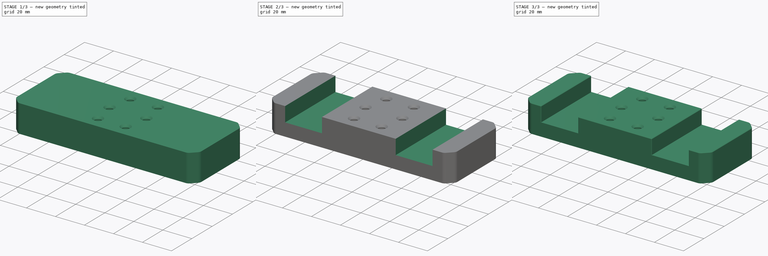
[diagram: build sequence overview — one tinted view per stage of 3, left to right]
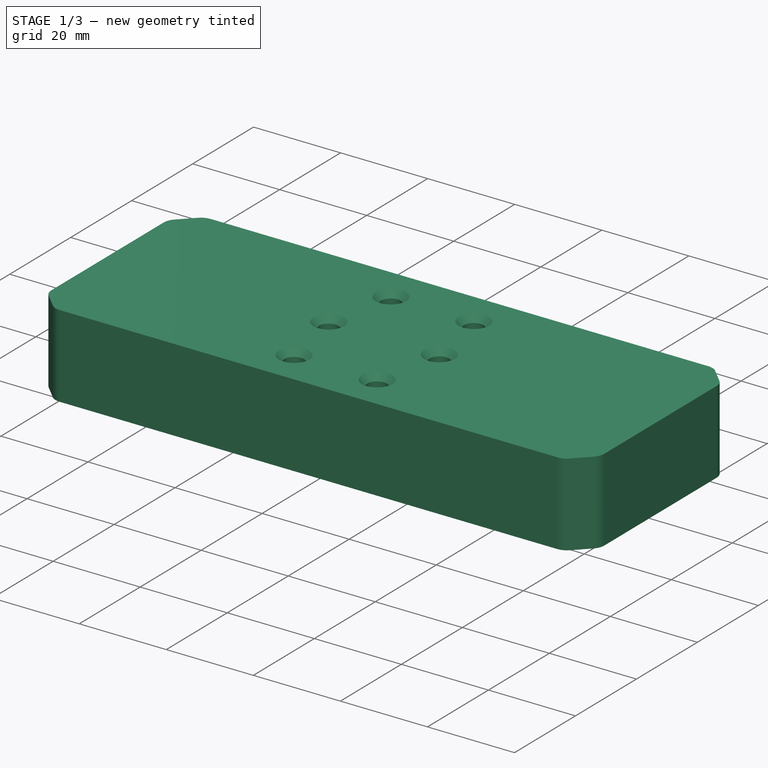
[diagram: stage 1 of 3 — iso view after this stage's code; geometry added in this stage tinted green]
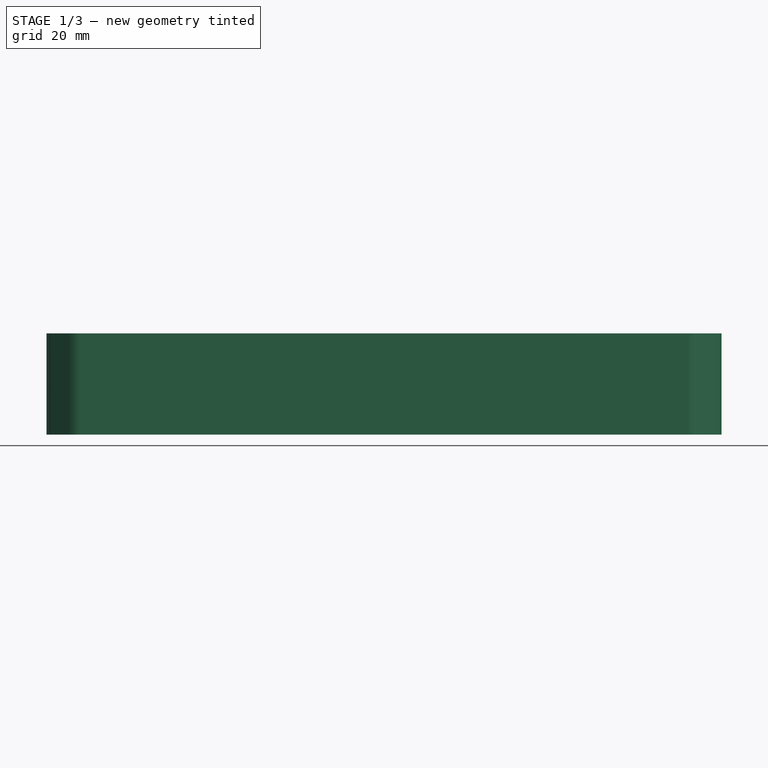
[diagram: stage 1 of 3 — front view after this stage's code; geometry added in this stage tinted green]
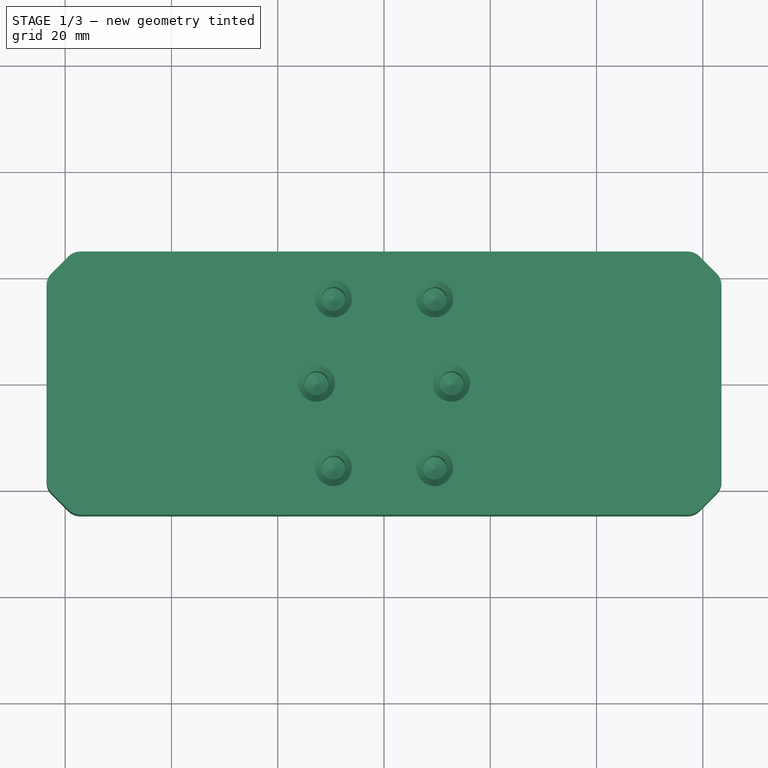
[diagram: stage 1 of 3 — top view after this stage's code; geometry added in this stage tinted green]
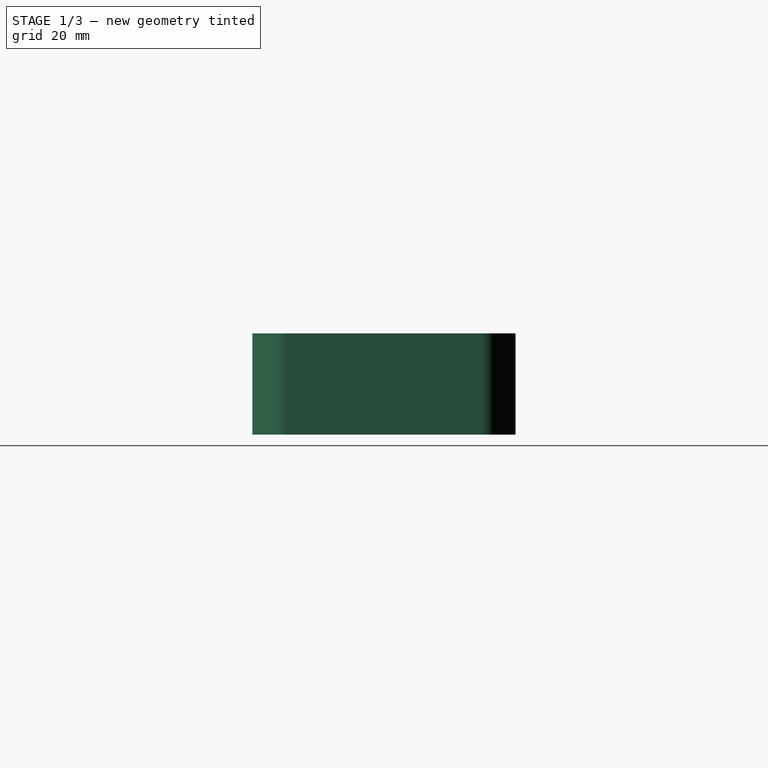
[diagram: stage 1 of 3 — right view after this stage's code; geometry added in this stage tinted green]
FCSTD DOCUMENT  (FreeCAD 0.19R24291 (Git))
Label: TITAN-2M
License: All rights reserved
LicenseURL: http://en.wikipedia.org/wiki/All_rights_reserved
objects: Sketcher::SketchObject×3, PartDesign::Pad×1, PartDesign::Hole×1, PartDesign::Pocket×1, PartDesign::Fillet×1, PartDesign::Chamfer×1, PartDesign::Body×1
note: 14 computed .brp shape members not serialized (recipe doc carries the construction recipe); baked Part::Feature solids carry a one-line shape summary decoded from their .brp

FEATURE [Sketcher::SketchObject] Sketch
  FullyConstrained = true
  MapMode = 5
  Support = -> [XY_Plane]
  sketch-geometry (24):
    g0: LineSegment StartX=-62.5701 StartY=-20.6601 StartZ=0 EndX=-59.3951 EndY=-23.8351 EndZ=0
    g1: LineSegment StartX=-57.15 StartY=-24.765 StartZ=0 EndX=57.15 EndY=-24.765 EndZ=0
    g2: LineSegment StartX=59.3951 StartY=-23.8351 StartZ=0 EndX=62.5701 EndY=-20.6601 EndZ=0
    g3: LineSegment StartX=63.5 StartY=-18.415 StartZ=0 EndX=63.5 EndY=18.415 EndZ=0
    g4: LineSegment StartX=62.5701 StartY=20.6601 StartZ=0 EndX=59.3951 EndY=23.8351 EndZ=0
    g5: LineSegment StartX=57.15 StartY=24.765 StartZ=0 EndX=-57.15 EndY=24.765 EndZ=0
    g6: LineSegment StartX=-59.3951 StartY=23.8351 StartZ=0 EndX=-62.5701 EndY=20.6601 EndZ=0
    g7: LineSegment StartX=-63.5 StartY=18.415 StartZ=0 EndX=-63.5 EndY=-18.415 EndZ=0
    g8: LineSegment StartX=63.5 StartY=-18.415 StartZ=0 EndX=63.5 EndY=-24.765 EndZ=0
    g9: LineSegment StartX=57.15 StartY=-24.765 StartZ=0 EndX=63.5 EndY=-24.765 EndZ=0
    g10: LineSegment StartX=57.15 StartY=24.765 StartZ=0 EndX=63.5 EndY=24.765 EndZ=0
    g11: LineSegment StartX=63.5 StartY=24.765 StartZ=0 EndX=63.5 EndY=18.415 EndZ=0
    g12: LineSegment StartX=-57.15 StartY=24.765 StartZ=0 EndX=-63.5 EndY=24.765 EndZ=0
    g13: LineSegment StartX=-63.5 StartY=24.765 StartZ=0 EndX=-63.5 EndY=18.415 EndZ=0
    g14: LineSegment StartX=-63.5 StartY=-18.415 StartZ=0 EndX=-63.5 EndY=-24.765 EndZ=0
    g15: LineSegment StartX=-63.5 StartY=-24.765 StartZ=0 EndX=-57.15 EndY=-24.765 EndZ=0
    g16: ArcOfCircle CenterX=-60.325 CenterY=18.415 CenterZ=0 NormalX=0 NormalY=0 NormalZ=1 AngleXU=0 Radius=3.175 StartAngle=2.35619 EndAngle=3.14159
    g17: ArcOfCircle CenterX=-57.15 CenterY=21.59 CenterZ=0 NormalX=0 NormalY=0 NormalZ=1 AngleXU=0 Radius=3.175 StartAngle=1.5708 EndAngle=2.35619
    g18: ArcOfCircle CenterX=57.15 CenterY=21.59 CenterZ=0 NormalX=0 NormalY=0 NormalZ=1 AngleXU=0 Radius=3.175 StartAngle=0.785398 EndAngle=1.5708
    g19: ArcOfCircle CenterX=60.325 CenterY=18.415 CenterZ=0 NormalX=0 NormalY=0 NormalZ=1 AngleXU=0 Radius=3.175 StartAngle=4e-16 EndAngle=0.785398
    g20: ArcOfCircle CenterX=60.325 CenterY=-18.415 CenterZ=0 NormalX=0 NormalY=0 NormalZ=1 AngleXU=0 Radius=3.175 StartAngle=5.49779 EndAngle=6.28319
    g21: ArcOfCircle CenterX=57.15 CenterY=-21.59 CenterZ=0 NormalX=0 NormalY=0 NormalZ=1 AngleXU=0 Radius=3.175 StartAngle=4.71239 EndAngle=5.49779
    g22: ArcOfCircle CenterX=-57.15 CenterY=-21.59 CenterZ=0 NormalX=0 NormalY=0 NormalZ=1 AngleXU=0 Radius=3.175 StartAngle=3.92699 EndAngle=4.71239
    g23: ArcOfCircle CenterX=-60.325 CenterY=-18.415 CenterZ=0 NormalX=0 NormalY=0 NormalZ=1 AngleXU=0 Radius=3.175 StartAngle=3.14159 EndAngle=3.92699
  constraints (58):
    c: Equal(g5,g1)
    c: Equal(g7,g3)
    c: Coincident(g9,g8)
    c: Coincident(g10,g11)
    c: Coincident(g12,g13)
    c: Coincident(g14,g15)
    c: Horizontal(g15)
    c: Horizontal(g12)
    c: Horizontal(g10)
    c: Horizontal(g9)
    c: Vertical(g8)
    c: Vertical(g11)
    c: Vertical(g13)
    c: Vertical(g14)
    c: Equal(g15,g14)
    c: Equal(g9,g8)
    c: Equal(g13,g12)
    c: Distance(g12) = 6.35
    c: Distance(g12,g10) = 127
    c: Distance(g12,g14) = 49.53
    c: Tangent(g7,g16) = -1.5708
    c: Tangent(g6,g16) = -1.5708
    c: Tangent(g5,g17) = -1.5708
    c: Tangent(g6,g17) = -1.5708
    c: Tangent(g5,g18) = -1.5708
    c: Tangent(g4,g18) = -1.5708
    c: Tangent(g4,g19) = -1.5708
    c: Tangent(g3,g19) = -1.5708
    c: Tangent(g2,g20) = -1.5708
    c: Tangent(g3,g20) = -1.5708
    c: Tangent(g2,g21) = -1.5708
    c: Tangent(g1,g21) = -1.5708
    c: Tangent(g1,g22) = -1.5708
    c: Tangent(g0,g22) = -1.5708
    c: Tangent(g0,g23) = -1.5708
    c: Tangent(g7,g23) = -1.5708
    c: Vertical(g3)
    c: Horizontal(g1)
    c: Coincident(g14,g7)
    c: Coincident(g15,g1)
    c: Equal(g22,g23)
    c: Equal(g23,g16)
    c: Equal(g16,g17)
    c: Equal(g17,g18)
    c: Equal(g18,g19)
    c: Equal(g19,g20)
    c: Equal(g20,g21)
    c: Radius(g16) = 3.175
    c: Coincident(g13,g7)
    c: Coincident(g12,g5)
    c: Coincident(g10,g5)
    c: Coincident(g11,g3)
    c: Coincident(g8,g3)
    c: Coincident(g9,g1)
    c: Symmetric(g12,g10,g-2)
    c: Symmetric(g14,g12,g-1)
    c: Equal(g14,g13)
    c: Equal(g11,g10)
FEATURE [PartDesign::Pad] Pad
  Direction = (1,1,1)
  Length = 19.05
  Length2 = 99.9998
  Profile = -> Sketch
  Refine = true
  Type = 0
FEATURE [Sketcher::SketchObject] Sketch001
  ExternalGeometry = -> [Pad]
  FullyConstrained = true
  MapMode = 5
  Placement = pos=(0,0,19.05) rot=(0,0,1;0rad)
  Support = -> [Pad]
  sketch-geometry (6):
    g0: Circle CenterX=-9.525 CenterY=15.875 CenterZ=0 NormalX=0 NormalY=0 NormalZ=1 AngleXU=0 Radius=2.5527
    g1: Circle CenterX=9.525 CenterY=15.875 CenterZ=0 NormalX=0 NormalY=0 NormalZ=1 AngleXU=0 Radius=2.5527
    g2: Circle CenterX=12.7 CenterY=0 CenterZ=0 NormalX=0 NormalY=0 NormalZ=1 AngleXU=0 Radius=2.5527
    g3: Circle CenterX=-12.7 CenterY=0 CenterZ=0 NormalX=0 NormalY=0 NormalZ=1 AngleXU=0 Radius=2.5527
    g4: Circle CenterX=-9.525 CenterY=-15.875 CenterZ=0 NormalX=0 NormalY=0 NormalZ=1 AngleXU=0 Radius=2.5527
    g5: Circle CenterX=9.525 CenterY=-15.875 CenterZ=0 NormalX=0 NormalY=0 NormalZ=1 AngleXU=0 Radius=2.5527
  constraints (14):
    c: PointOnObject(g2,g-1)
    c: Symmetric(g0,g1,g-2)
    c: DistanceX(g-3,g0) = 53.975
    c: DistanceY(g0,g-4) = 8.89
    c: Symmetric(g0,g4,g-1)
    c: Symmetric(g1,g5,g-1)
    c: Equal(g0,g1)
    c: Equal(g1,g2)
    c: Equal(g2,g5)
    c: Equal(g5,g4)
    c: Equal(g4,g3)
    c: Symmetric(g3,g2,g-2)
    c: DistanceX(g-3,g3) = 50.8
    c: Diameter(g4) = 5.1054
FEATURE [PartDesign::Hole] Hole
  BaseFeature = -> Pad
  Depth = 14.986
  DepthType = 0
  Diameter = 4.5
  DrillForDepth = false
  DrillPoint = 1
  DrillPointAngle = 118
  HoleCutCountersinkAngle = 82
  HoleCutCustomValues = false
  HoleCutDepth = 0
  HoleCutDiameter = 6.985
  HoleCutType = 2
  ModelActualThread = false
  Profile = -> Sketch001
  Refine = true
  Tapered = false
  TaperedAngle = 90
  ThreadAngle = 60
  ThreadClass = 1
  ThreadCutOffInner = 0.114532
  ThreadCutOffOuter = 0.229064
  ThreadDirection = 0
  ThreadFit = 1
  ThreadPitch = 1.058
  ThreadSize = 8
  ThreadType = 3
  Threaded = true
  expr: Depth = 0.375" + 0.215"
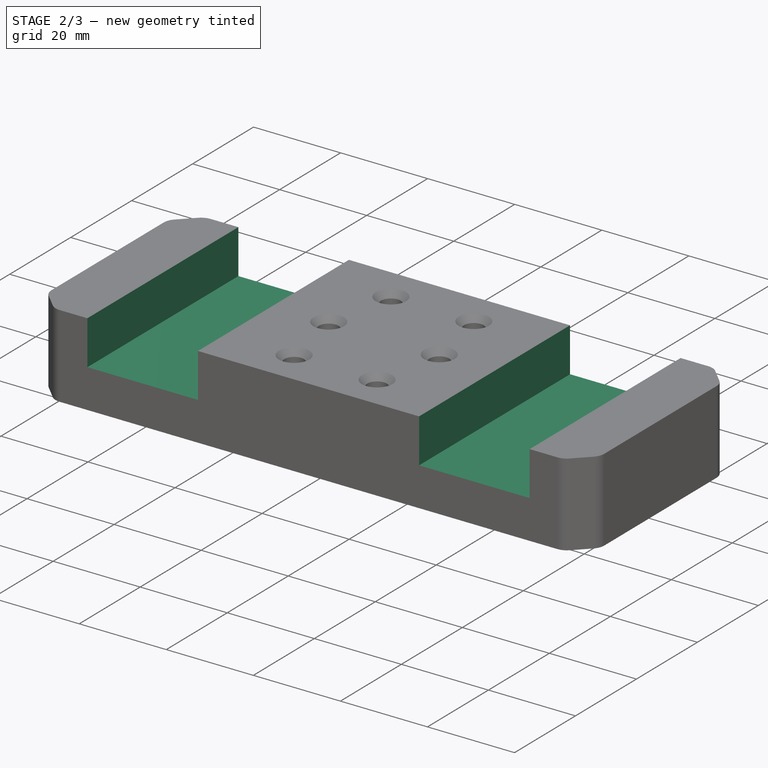
[diagram: stage 2 of 3 — iso view after this stage's code; geometry added in this stage tinted green]
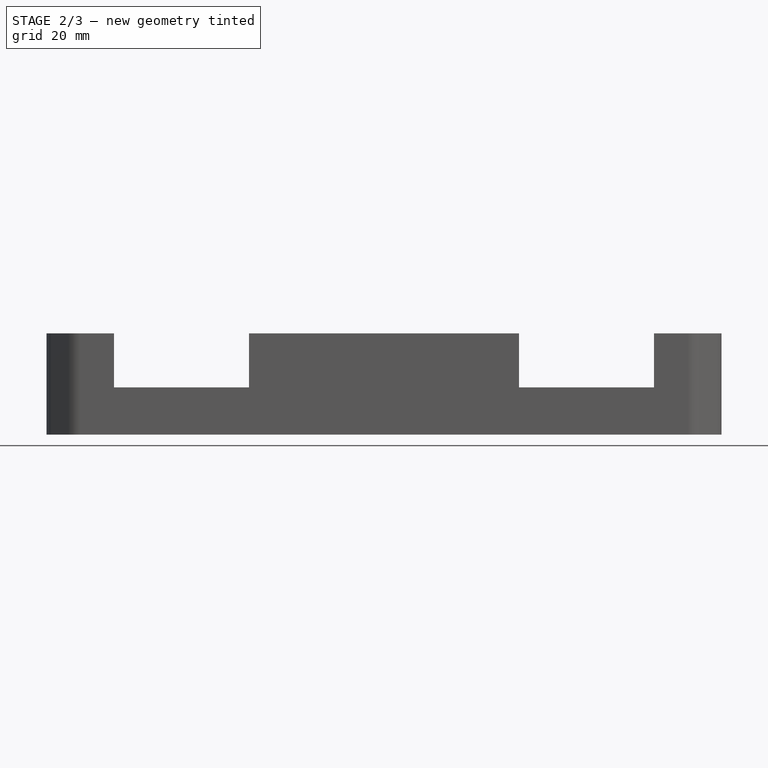
[diagram: stage 2 of 3 — front view after this stage's code; geometry added in this stage tinted green]
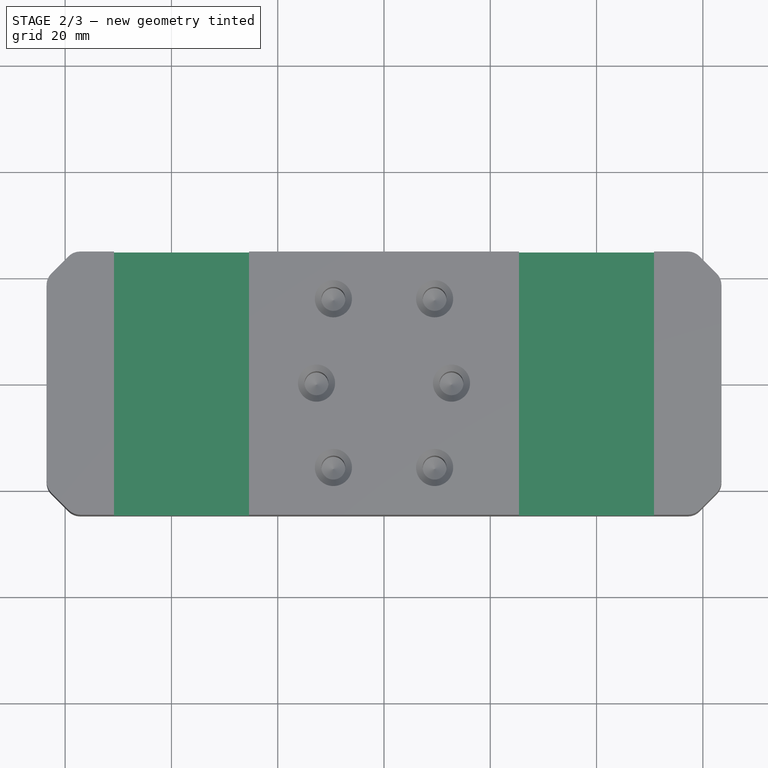
[diagram: stage 2 of 3 — top view after this stage's code; geometry added in this stage tinted green]
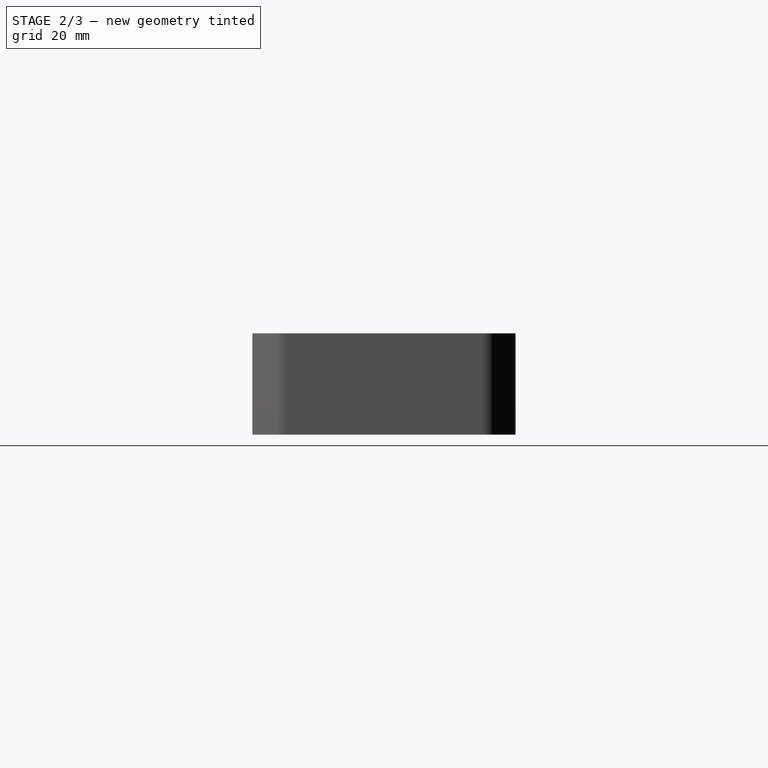
[diagram: stage 2 of 3 — right view after this stage's code; geometry added in this stage tinted green]
FEATURE [Sketcher::SketchObject] Sketch002
  ExternalGeometry = -> [Hole]
  FullyConstrained = true
  MapMode = 5
  Placement = pos=(0,0,19.05) rot=(0,0,1;0rad)
  Support = -> [Hole]
  sketch-geometry (8):
    g0: LineSegment StartX=-50.8 StartY=24.765 StartZ=0 EndX=-25.4 EndY=24.765 EndZ=0
    g1: LineSegment StartX=-25.4 StartY=24.765 StartZ=0 EndX=-25.4 EndY=-24.765 EndZ=0
    g2: LineSegment StartX=-25.4 StartY=-24.765 StartZ=0 EndX=-50.8 EndY=-24.765 EndZ=0
    g3: LineSegment StartX=-50.8 StartY=-24.765 StartZ=0 EndX=-50.8 EndY=24.765 EndZ=0
    g4: LineSegment StartX=25.4 StartY=24.765 StartZ=0 EndX=50.8 EndY=24.765 EndZ=0
    g5: LineSegment StartX=50.8 StartY=24.765 StartZ=0 EndX=50.8 EndY=-24.765 EndZ=0
    g6: LineSegment StartX=50.8 StartY=-24.765 StartZ=0 EndX=25.4 EndY=-24.765 EndZ=0
    g7: LineSegment StartX=25.4 StartY=-24.765 StartZ=0 EndX=25.4 EndY=24.765 EndZ=0
  constraints (22):
    c: Coincident(g0,g1)
    c: Coincident(g1,g2)
    c: Coincident(g2,g3)
    c: Coincident(g3,g0)
    c: Horizontal(g0)
    c: Horizontal(g2)
    c: Vertical(g1)
    c: Vertical(g3)
    c: PointOnObject(g0,g-3)
    c: PointOnObject(g1,g-5)
    c: Coincident(g4,g5)
    c: Coincident(g5,g6)
    c: Coincident(g6,g7)
    c: Coincident(g7,g4)
    c: Horizontal(g4)
    c: Horizontal(g6)
    c: Vertical(g5)
    c: Vertical(g7)
    c: Symmetric(g6,g1,g-2)
    c: Symmetric(g4,g0,g-2)
    c: DistanceX(g-4,g0) = 12.7
    c: DistanceX(g-4,g0) = 38.1
FEATURE [PartDesign::Pocket] Pocket
  BaseFeature = -> Hole
  Length = 10.16
  Length2 = 99.9998
  Profile = -> Sketch002
  Refine = true
  Type = 0
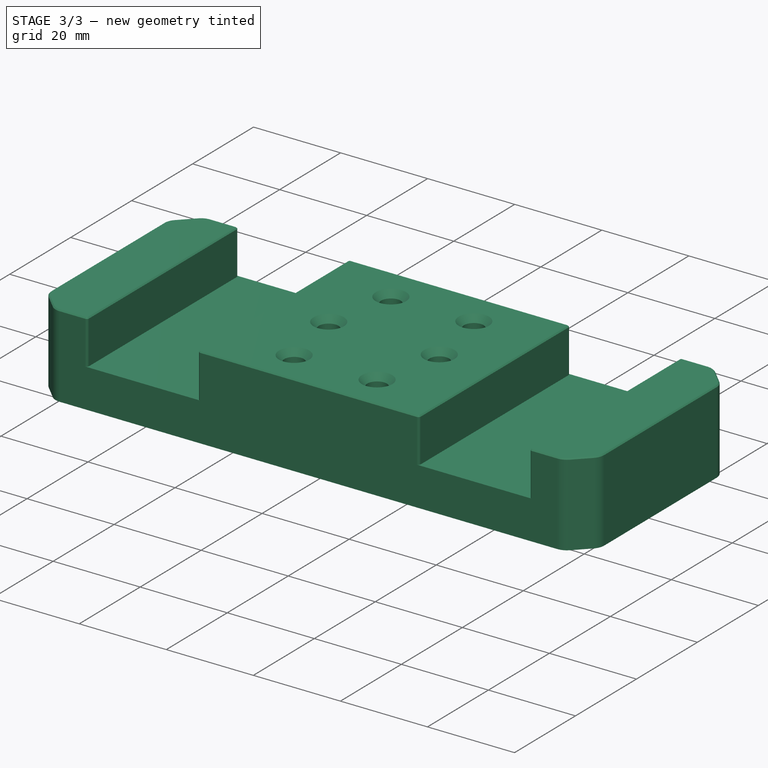
[diagram: stage 3 of 3 — iso view after this stage's code; geometry added in this stage tinted green]
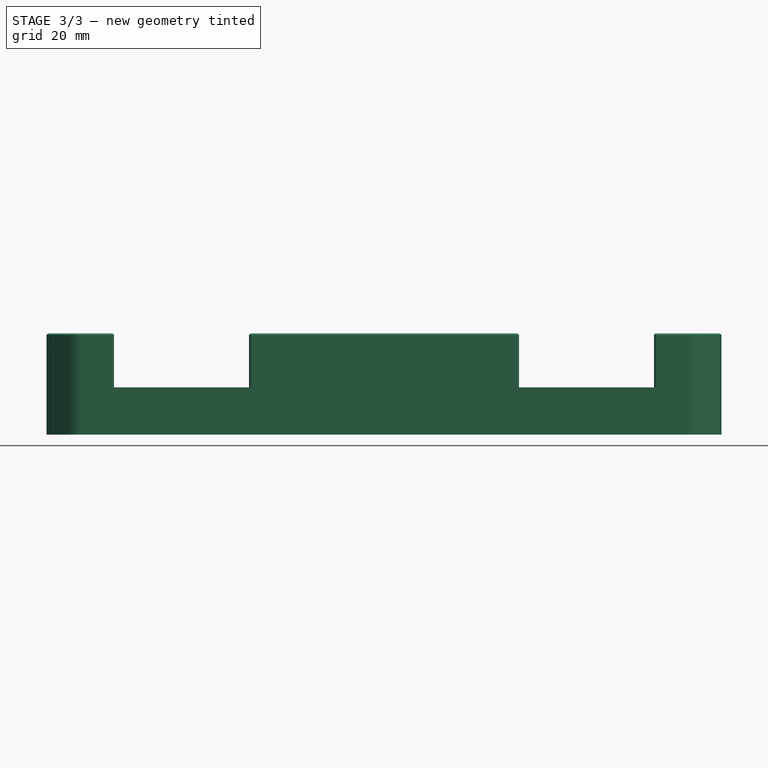
[diagram: stage 3 of 3 — front view after this stage's code; geometry added in this stage tinted green]
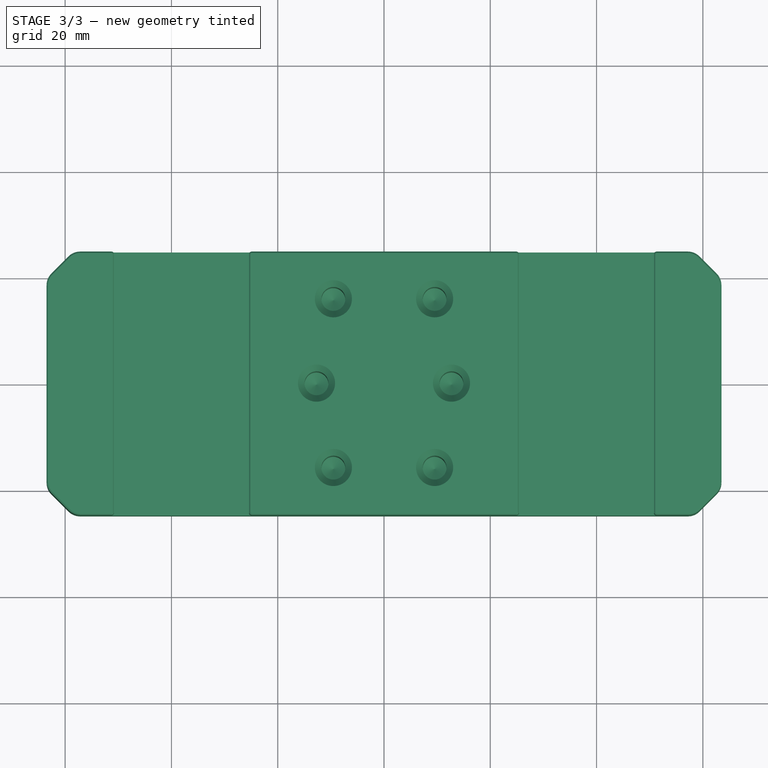
[diagram: stage 3 of 3 — top view after this stage's code; geometry added in this stage tinted green]
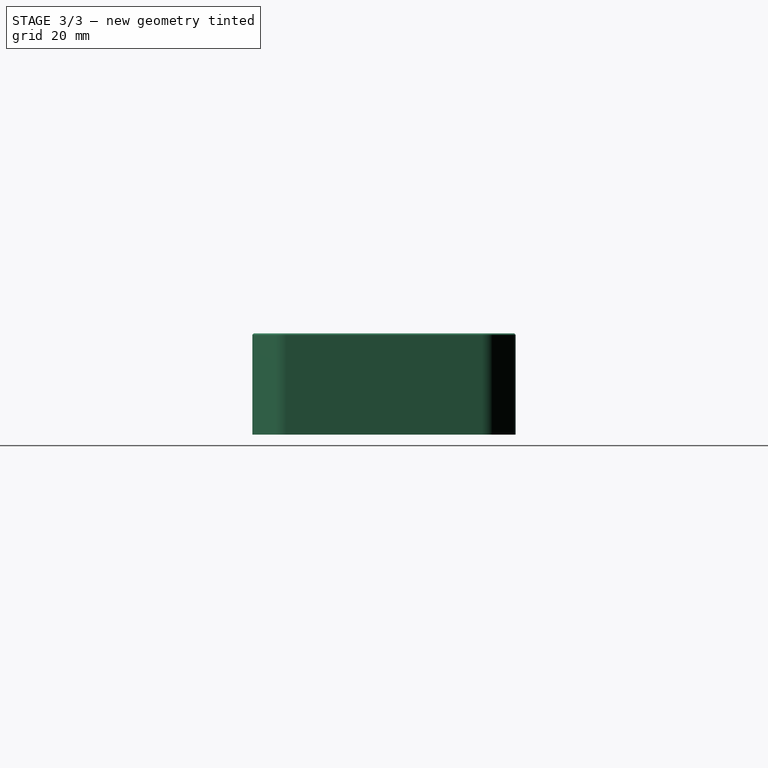
[diagram: stage 3 of 3 — right view after this stage's code; geometry added in this stage tinted green]
FEATURE [PartDesign::Fillet] Fillet
  Base = -> Pocket [Edge40,Edge56,Edge38,Edge36,Edge34,Edge62,Edge60,Edge58]
  BaseFeature = -> Pocket
  Radius = 0.508
  Refine = true
  SupportTransform = false
FEATURE [PartDesign::Chamfer] Chamfer
  Angle = 45
  Base = -> Fillet [Edge20,Edge23,Edge1]
  BaseFeature = -> Fillet
  ChamferType = 0
  FlipDirection = false
  Refine = true
  Size = 0.254
  Size2 = 1
  SupportTransform = false
FEATURE [PartDesign::Body] Body
  Group = -> [Sketch,Pad,Sketch001,Hole,Sketch002,Pocket,Fillet,Chamfer]
  Origin = -> Origin
  Tip = -> Chamfer
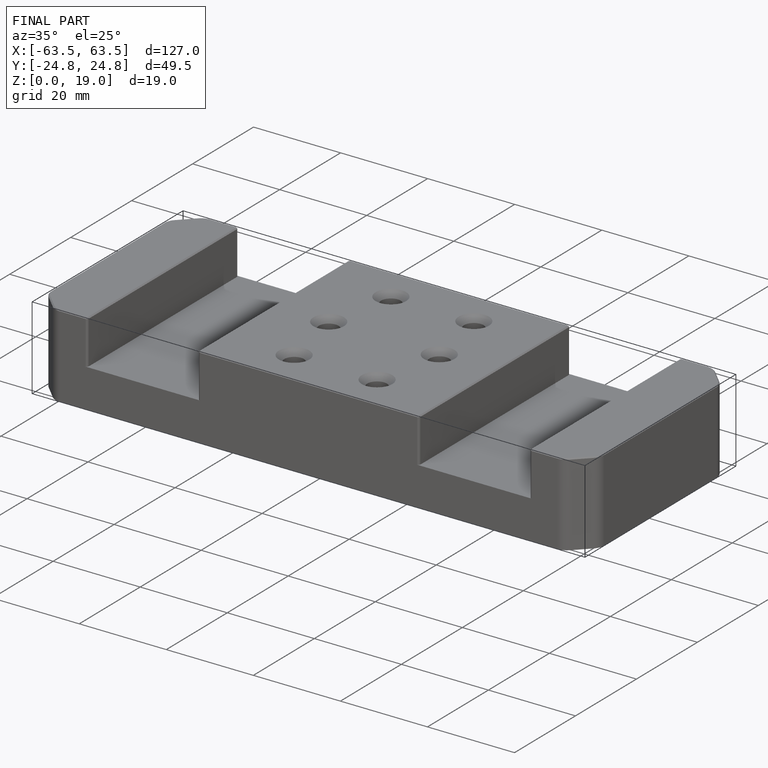
[diagram: finished part — iso view with bounding-box wireframe]
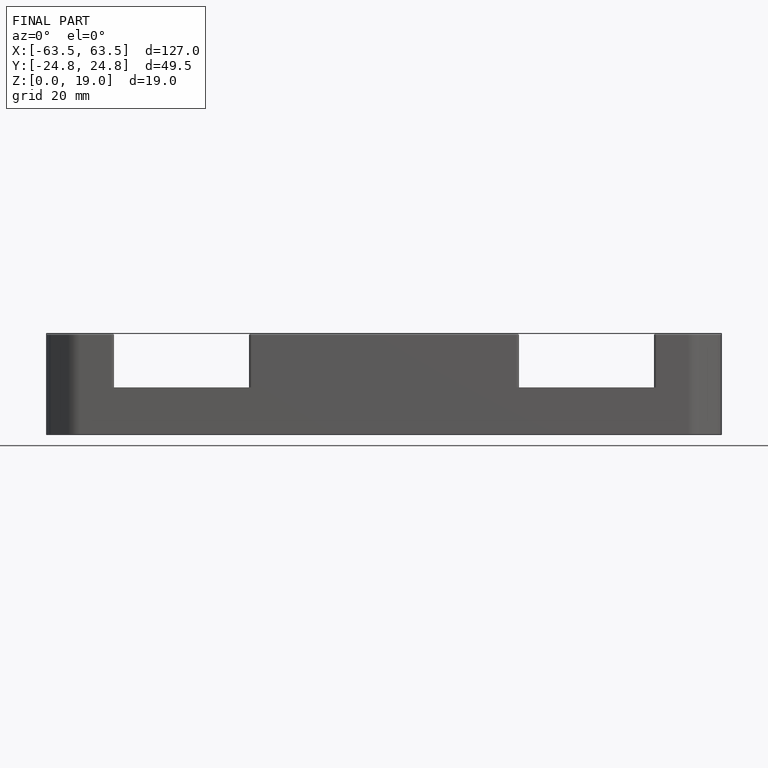
[diagram: finished part — front view with bounding-box wireframe]
